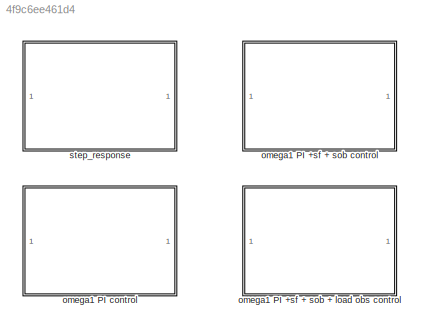
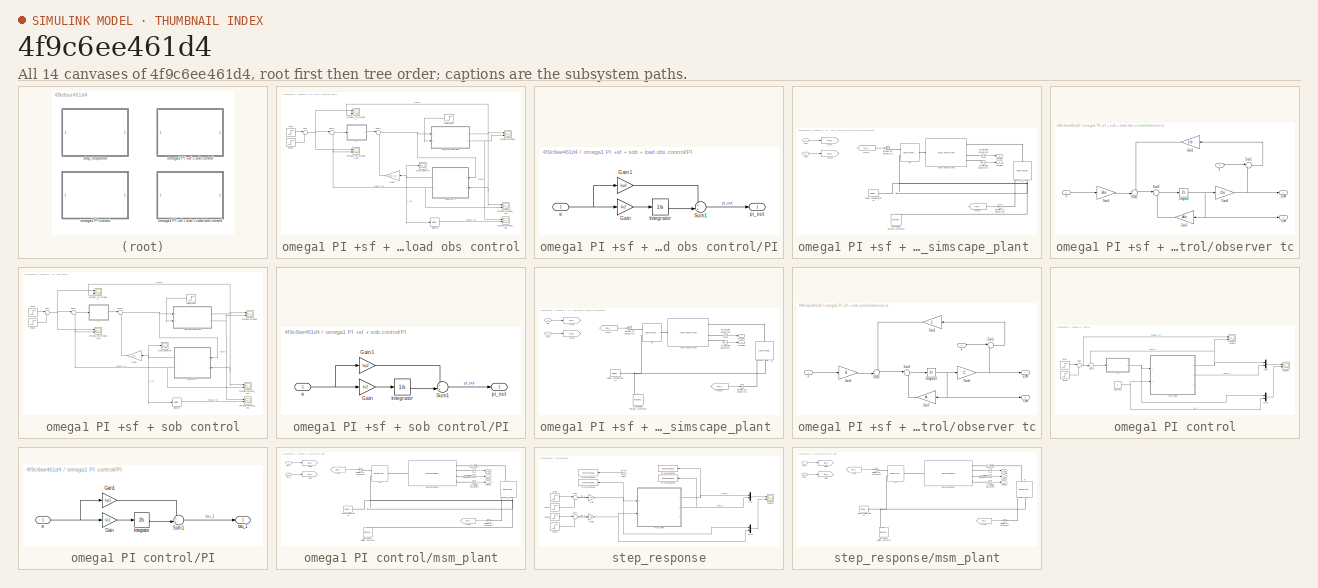
[diagram: thumbnail index - all 14 canvases of the model, root first then tree order]
MODEL slx_4f9c6ee461d4
KIND model
CONFIG AbsTol = auto
CONFIG EnableMultiTasking = off
CONFIG FixedStep = auto
CONFIG MaxStep = Tc
CONFIG MinStep = auto
CONFIG RelTol = 1e-3
CONFIG SampleTimeConstraint = Unconstrained
CONFIG SolverName = daessc
CONFIG StartTime = 0.0
CONFIG StopTime = simlength
BLOCK [SubSystem] omega1 PI +sf + sob + load obs control
  Commented = on
  Ports = []
  RequestExecContextInheritance = off
BLOCK [Gain] omega1 PI +sf + sob + load obs control/Gain3
  Gain = [Ks -1]
  Multiplication = Matrix(K*u)
BLOCK [Step] omega1 PI +sf + sob + load obs control/Load_step
  After = load_torque
  NameLocation = top
  SampleTime = 0
  Time = 16
BLOCK [SubSystem] omega1 PI +sf + sob + load obs control/PI
  Ports = [1, 1]
  RequestExecContextInheritance = off
BLOCK [Gain] omega1 PI +sf + sob + load obs control/PI/Gain
  Gain = ki2
BLOCK [Gain] omega1 PI +sf + sob + load obs control/PI/Gain1
  Gain = kp2
BLOCK [Integrator] omega1 PI +sf + sob + load obs control/PI/Integrator
  Ports = [1, 1]
BLOCK [Sum] omega1 PI +sf + sob + load obs control/PI/Sum1
  Inputs = ++|
  Ports = [2, 1]
BLOCK [Inport] omega1 PI +sf + sob + load obs control/PI/e
BLOCK [Outport] omega1 PI +sf + sob + load obs control/PI/pi_out
BLOCK [Selector] omega1 PI +sf + sob + load obs control/Selector
  IndexOptions = Index vector (dialog)
  Indices = 2
  InputPortWidth = 4
  OutputSizes = 1
  Ports = [1, 1]
BLOCK [Step] omega1 PI +sf + sob + load obs control/Step
  SampleTime = 0
  Time = 0.2
BLOCK [Step] omega1 PI +sf + sob + load obs control/Step1
  SampleTime = 0
  Time = 8
BLOCK [Sum] omega1 PI +sf + sob + load obs control/Sum
  Inputs = |+-
  Ports = [2, 1]
BLOCK [Sum] omega1 PI +sf + sob + load obs control/Sum3
  Inputs = |+-
  Ports = [2, 1]
BLOCK [Sum] omega1 PI +sf + sob + load obs control/Sum4
  Inputs = |+-
  Ports = [2, 1]
BLOCK [SubSystem] omega1 PI +sf + sob + load obs control/code_simscape_plant 
  Ports = [2, 2]
  RequestExecContextInheritance = off
BLOCK [From] omega1 PI +sf + sob + load obs control/code_simscape_plant /From1
  GotoTag = tau_1
BLOCK [From] omega1 PI +sf + sob + load obs control/code_simscape_plant /From2
  GotoTag = tau_2
BLOCK [Goto] omega1 PI +sf + sob + load obs control/code_simscape_plant /Goto
  GotoTag = tau_1
BLOCK [Goto] omega1 PI +sf + sob + load obs control/code_simscape_plant /Goto1
  GotoTag = tau_2
BLOCK [Reference] omega1 PI +sf + sob + load obs control/code_simscape_plant /Mechanical Rotational Reference1  REF=fl_lib/Mechanical/Rotational Elements/Mechanical
Rotational Reference
  NameLocation = right
  Ports = [0, 0, 0, 0, 0, 1]
  SourceBlock = fl_lib/Mechanical/Rotational Elements/Mechanical\nRotational Reference
  SourceProductBaseCode = SS
  SourceType = Mechanical\nRotational Reference
BLOCK [Reference] omega1 PI +sf + sob + load obs control/code_simscape_plant /PS-Simulink Converter2  REF=nesl_utility/PS-Simulink
Converter
  Ports = [0, 1, 0, 0, 0, 1]
  SourceBlock = nesl_utility/PS-Simulink\nConverter
  SourceProductBaseCode = PW,SS
  SourceType = PS-Simulink\nConverter
BLOCK [Reference] omega1 PI +sf + sob + load obs control/code_simscape_plant /PS-Simulink Converter3  REF=nesl_utility/PS-Simulink
Converter
  NameLocation = top
  Ports = [0, 1, 0, 0, 0, 1]
  SourceBlock = nesl_utility/PS-Simulink\nConverter
  SourceProductBaseCode = PW,SS
  SourceType = PS-Simulink\nConverter
BLOCK [Reference] omega1 PI +sf + sob + load obs control/code_simscape_plant /Simulink-PS Converter1  REF=nesl_utility/Simulink-PS
Converter
  Ports = [1, 0, 0, 0, 0, 0, 1]
  SourceBlock = nesl_utility/Simulink-PS\nConverter
  SourceProductBaseCode = PW,SS
  SourceType = Simulink-PS\nConverter
BLOCK [Reference] omega1 PI +sf + sob + load obs control/code_simscape_plant /Simulink-PS Converter2  REF=nesl_utility/Simulink-PS
Converter
  Ports = [1, 0, 0, 0, 0, 0, 1]
  SourceBlock = nesl_utility/Simulink-PS\nConverter
  SourceProductBaseCode = PW,SS
  SourceType = Simulink-PS\nConverter
BLOCK [Reference] omega1 PI +sf + sob + load obs control/code_simscape_plant /Solver Configuration1  REF=nesl_utility/Solver
Configuration
  Ports = [0, 0, 0, 0, 0, 0, 1]
  SourceBlock = nesl_utility/Solver\nConfiguration
  SourceProductBaseCode = PW,SS
  SourceType = Solver\nConfiguration
BLOCK [Reference] omega1 PI +sf + sob + load obs control/code_simscape_plant /TL  REF=fl_lib/Mechanical/Mechanical Sources/Ideal Torque Source
  NameLocation = right
  Ports = [0, 0, 0, 0, 0, 1, 2]
  SourceBlock = fl_lib/Mechanical/Mechanical Sources/Ideal Torque Source
  SourceProductBaseCode = SS
  SourceType = Ideal Torque Source
BLOCK [Reference] omega1 PI +sf + sob + load obs control/code_simscape_plant /Tm   REF=fl_lib/Mechanical/Mechanical Sources/Ideal Torque Source
  Ports = [0, 0, 0, 0, 0, 1, 2]
  SourceBlock = fl_lib/Mechanical/Mechanical Sources/Ideal Torque Source
  SourceProductBaseCode = SS
  SourceType = Ideal Torque Source
BLOCK [Reference] omega1 PI +sf + sob + load obs control/code_simscape_plant /mass spring mass  REF=mass_spring_mass_lib/mass spring mass
  Ports = [0, 0, 0, 0, 0, 1, 4]
  SourceBlock = mass_spring_mass_lib/mass spring mass
  SourceType = mass spring mass
BLOCK [Outport] omega1 PI +sf + sob + load obs control/code_simscape_plant /omega1
BLOCK [Outport] omega1 PI +sf + sob + load obs control/code_simscape_plant /omega2
  Port = 2
BLOCK [Inport] omega1 PI +sf + sob + load obs control/code_simscape_plant /tau1
BLOCK [Inport] omega1 PI +sf + sob + load obs control/code_simscape_plant /tau2
  Port = 2
BLOCK [SubSystem] omega1 PI +sf + sob + load obs control/observer tc
  NameLocation = top
  Ports = [2, 2]
  RequestExecContextInheritance = off
BLOCK [Gain] omega1 PI +sf + sob + load obs control/observer tc/Gain1
  Gain = Lle
  Multiplication = Matrix(K*u)
  NameLocation = top
BLOCK [Gain] omega1 PI +sf + sob + load obs control/observer tc/Gain5
  Gain = Ble
  Multiplication = Matrix(K*u)
BLOCK [Gain] omega1 PI +sf + sob + load obs control/observer tc/Gain6
  Gain = Cle
  Multiplication = Matrix(K*u)
BLOCK [Gain] omega1 PI +sf + sob + load obs control/observer tc/Gain7
  Gain = Ale
  Multiplication = Matrix(K*u)
BLOCK [Integrator] omega1 PI +sf + sob + load obs control/observer tc/Integrator
  Ports = [1, 1]
BLOCK [Sum] omega1 PI +sf + sob + load obs control/observer tc/Sum1
  Inputs = |+-
  Ports = [2, 1]
BLOCK [Sum] omega1 PI +sf + sob + load obs control/observer tc/Sum2
  Inputs = ++|
  Ports = [2, 1]
BLOCK [Sum] omega1 PI +sf + sob + load obs control/observer tc/Sum3
  Inputs = |++
  Ports = [2, 1]
BLOCK [Inport] omega1 PI +sf + sob + load obs control/observer tc/u
BLOCK [Outport] omega1 PI +sf + sob + load obs control/observer tc/x_hat
BLOCK [Inport] omega1 PI +sf + sob + load obs control/observer tc/y
  Port = 2
BLOCK [Outport] omega1 PI +sf + sob + load obs control/observer tc/y_hat
  Port = 2
BLOCK [Scope] omega1 PI +sf + sob + load obs control/omega1//omega1_hat
  Floating = off
  NumInputPorts = 2
  Ports = [2]
  ScopeSpecificationString = Simulink.scopes.TimeScopeBlockCfg('CurrentConfiguration', extmgr.ConfigurationSet(extmgr.Configuration('Core','General UI',true),extmgr.Configuration('Core','Source UI',true),extmgr.Configuration('Sources','WiredSimulink',true,'DataLoggingVariableName','ScopeData1'),extmgr.Configuration('Visuals','Time Domain',true,'SerializedDisplays',{struct('MinYLimReal','-1.06166','MaxYLimReal','4.25568','YLab...<+1646ch>
BLOCK [Scope] omega1 PI +sf + sob + load obs control/omega1//omega2
  Floating = off
  NumInputPorts = 2
  Ports = [2]
  ScopeSpecificationString = Simulink.scopes.TimeScopeBlockCfg('CurrentConfiguration', extmgr.ConfigurationSet(extmgr.Configuration('Core','General UI',true),extmgr.Configuration('Core','Source UI',true),extmgr.Configuration('Sources','WiredSimulink',true,'DataLoggingVariableName','ScopeData2'),extmgr.Configuration('Visuals','Time Domain',true,'SerializedDisplays',{struct('MinYLimReal','-0.43288','MaxYLimReal','1.77513','YLab...<+1671ch>
BLOCK [Scope] omega1 PI +sf + sob + load obs control/omega1_ref//omega1
  Floating = off
  NumInputPorts = 2
  Ports = [2]
  ScopeSpecificationString = Simulink.scopes.TimeScopeBlockCfg('CurrentConfiguration', extmgr.ConfigurationSet(extmgr.Configuration('Core','General UI',true),extmgr.Configuration('Core','Source UI',true),extmgr.Configuration('Sources','WiredSimulink',true,'DataLoggingVariableName','ScopeData3'),extmgr.Configuration('Visuals','Time Domain',true,'SerializedDisplays',{struct('MinYLimReal','-1.06022','MaxYLimReal','4.24278','YLab...<+1654ch>
BLOCK [Scope] omega1 PI +sf + sob + load obs control/omega1_ref//omega1_hat
  Floating = off
  NumInputPorts = 2
  Ports = [2]
  ScopeSpecificationString = Simulink.scopes.TimeScopeBlockCfg('CurrentConfiguration', extmgr.ConfigurationSet(extmgr.Configuration('Core','General UI',true),extmgr.Configuration('Core','Source UI',true),extmgr.Configuration('Sources','WiredSimulink',true,'DataLoggingVariableName','ScopeData4'),extmgr.Configuration('Visuals','Time Domain',true,'SerializedDisplays',{struct('MinYLimReal','-1.06022','MaxYLimReal','4.24278','YLab...<+1672ch>
BLOCK [Scope] omega1 PI +sf + sob + load obs control/omega2//omega2_hat
  Floating = off
  NumInputPorts = 2
  Ports = [2]
  ScopeSpecificationString = Simulink.scopes.TimeScopeBlockCfg('CurrentConfiguration', extmgr.ConfigurationSet(extmgr.Configuration('Core','General UI',true),extmgr.Configuration('Core','Source UI',true),extmgr.Configuration('Sources','WiredSimulink',true,'DataLoggingVariableName','ScopeData5'),extmgr.Configuration('Visuals','Time Domain',true,'SerializedDisplays',{struct('MinYLimReal','-1.2654','MaxYLimReal','6.39','YLabelRe...<+1636ch>
BLOCK [Scope] omega1 PI +sf + sob + load obs control/state_observer
  Floating = off
  NumInputPorts = 1
  Ports = [1]
  ScopeSpecificationString = Simulink.scopes.TimeScopeBlockCfg('CurrentConfiguration', extmgr.ConfigurationSet(extmgr.Configuration('Core','General UI',true),extmgr.Configuration('Core','Source UI',true),extmgr.Configuration('Sources','WiredSimulink',true,'DataLoggingVariableName','ScopeData6'),extmgr.Configuration('Visuals','Time Domain',true,'SerializedDisplays',{struct('MinYLimReal','-0.29359','MaxYLimReal','1.29359','YLab...<+1460ch>
BLOCK [SubSystem] omega1 PI +sf + sob control
  Commented = on
  Ports = []
  RequestExecContextInheritance = off
BLOCK [Gain] omega1 PI +sf + sob control/Gain3
  Gain = Ks
  Multiplication = Matrix(K*u)
BLOCK [Step] omega1 PI +sf + sob control/Load_step
  After = load_torque
  NameLocation = top
  SampleTime = 0
  Time = 16
BLOCK [SubSystem] omega1 PI +sf + sob control/PI
  Ports = [1, 1]
  RequestExecContextInheritance = off
BLOCK [Gain] omega1 PI +sf + sob control/PI/Gain
  Gain = ki2
BLOCK [Gain] omega1 PI +sf + sob control/PI/Gain1
  Gain = kp2
BLOCK [Integrator] omega1 PI +sf + sob control/PI/Integrator
  Ports = [1, 1]
BLOCK [Sum] omega1 PI +sf + sob control/PI/Sum1
  Inputs = ++|
  Ports = [2, 1]
BLOCK [Inport] omega1 PI +sf + sob control/PI/e
BLOCK [Outport] omega1 PI +sf + sob control/PI/pi_out
BLOCK [Selector] omega1 PI +sf + sob control/Selector
  IndexOptions = Index vector (dialog)
  Indices = 2
  InputPortWidth = 3
  OutputSizes = 1
  Ports = [1, 1]
BLOCK [Step] omega1 PI +sf + sob control/Step
  SampleTime = 0
  Time = 0.2
BLOCK [Step] omega1 PI +sf + sob control/Step1
  SampleTime = 0
  Time = 8
BLOCK [Sum] omega1 PI +sf + sob control/Sum
  Inputs = |+-
  Ports = [2, 1]
BLOCK [Sum] omega1 PI +sf + sob control/Sum3
  Inputs = |+-
  Ports = [2, 1]
BLOCK [Sum] omega1 PI +sf + sob control/Sum4
  Inputs = |+-
  Ports = [2, 1]
BLOCK [SubSystem] omega1 PI +sf + sob control/code_simscape_plant 
  Ports = [2, 2]
  RequestExecContextInheritance = off
BLOCK [From] omega1 PI +sf + sob control/code_simscape_plant /From1
  GotoTag = tau_1
BLOCK [From] omega1 PI +sf + sob control/code_simscape_plant /From2
  GotoTag = tau_2
BLOCK [Goto] omega1 PI +sf + sob control/code_simscape_plant /Goto
  GotoTag = tau_1
BLOCK [Goto] omega1 PI +sf + sob control/code_simscape_plant /Goto1
  GotoTag = tau_2
BLOCK [Reference] omega1 PI +sf + sob control/code_simscape_plant /Mechanical Rotational Reference1  REF=fl_lib/Mechanical/Rotational Elements/Mechanical
Rotational Reference
  NameLocation = right
  Ports = [0, 0, 0, 0, 0, 1]
  SourceBlock = fl_lib/Mechanical/Rotational Elements/Mechanical\nRotational Reference
  SourceProductBaseCode = SS
  SourceType = Mechanical\nRotational Reference
BLOCK [Reference] omega1 PI +sf + sob control/code_simscape_plant /PS-Simulink Converter2  REF=nesl_utility/PS-Simulink
Converter
  Ports = [0, 1, 0, 0, 0, 1]
  SourceBlock = nesl_utility/PS-Simulink\nConverter
  SourceProductBaseCode = PW,SS
  SourceType = PS-Simulink\nConverter
BLOCK [Reference] omega1 PI +sf + sob control/code_simscape_plant /PS-Simulink Converter3  REF=nesl_utility/PS-Simulink
Converter
  NameLocation = top
  Ports = [0, 1, 0, 0, 0, 1]
  SourceBlock = nesl_utility/PS-Simulink\nConverter
  SourceProductBaseCode = PW,SS
  SourceType = PS-Simulink\nConverter
BLOCK [Reference] omega1 PI +sf + sob control/code_simscape_plant /Simulink-PS Converter1  REF=nesl_utility/Simulink-PS
Converter
  Ports = [1, 0, 0, 0, 0, 0, 1]
  SourceBlock = nesl_utility/Simulink-PS\nConverter
  SourceProductBaseCode = PW,SS
  SourceType = Simulink-PS\nConverter
BLOCK [Reference] omega1 PI +sf + sob control/code_simscape_plant /Simulink-PS Converter2  REF=nesl_utility/Simulink-PS
Converter
  Ports = [1, 0, 0, 0, 0, 0, 1]
  SourceBlock = nesl_utility/Simulink-PS\nConverter
  SourceProductBaseCode = PW,SS
  SourceType = Simulink-PS\nConverter
BLOCK [Reference] omega1 PI +sf + sob control/code_simscape_plant /Solver Configuration1  REF=nesl_utility/Solver
Configuration
  Ports = [0, 0, 0, 0, 0, 0, 1]
  SourceBlock = nesl_utility/Solver\nConfiguration
  SourceProductBaseCode = PW,SS
  SourceType = Solver\nConfiguration
BLOCK [Reference] omega1 PI +sf + sob control/code_simscape_plant /TL  REF=fl_lib/Mechanical/Mechanical Sources/Ideal Torque Source
  NameLocation = right
  Ports = [0, 0, 0, 0, 0, 1, 2]
  SourceBlock = fl_lib/Mechanical/Mechanical Sources/Ideal Torque Source
  SourceProductBaseCode = SS
  SourceType = Ideal Torque Source
BLOCK [Reference] omega1 PI +sf + sob control/code_simscape_plant /Tm   REF=fl_lib/Mechanical/Mechanical Sources/Ideal Torque Source
  Ports = [0, 0, 0, 0, 0, 1, 2]
  SourceBlock = fl_lib/Mechanical/Mechanical Sources/Ideal Torque Source
  SourceProductBaseCode = SS
  SourceType = Ideal Torque Source
BLOCK [Reference] omega1 PI +sf + sob control/code_simscape_plant /mass spring mass  REF=mass_spring_mass_lib/mass spring mass
  Ports = [0, 0, 0, 0, 0, 1, 4]
  SourceBlock = mass_spring_mass_lib/mass spring mass
  SourceType = mass spring mass
BLOCK [Outport] omega1 PI +sf + sob control/code_simscape_plant /omega1
BLOCK [Outport] omega1 PI +sf + sob control/code_simscape_plant /omega2
  Port = 2
BLOCK [Inport] omega1 PI +sf + sob control/code_simscape_plant /tau1
BLOCK [Inport] omega1 PI +sf + sob control/code_simscape_plant /tau2
  Port = 2
BLOCK [SubSystem] omega1 PI +sf + sob control/observer tc
  NameLocation = top
  Ports = [2, 2]
  RequestExecContextInheritance = off
BLOCK [Gain] omega1 PI +sf + sob control/observer tc/Gain1
  Gain = L
  Multiplication = Matrix(K*u)
  NameLocation = top
BLOCK [Gain] omega1 PI +sf + sob control/observer tc/Gain5
  Gain = B
  Multiplication = Matrix(K*u)
BLOCK [Gain] omega1 PI +sf + sob control/observer tc/Gain6
  Gain = C
  Multiplication = Matrix(K*u)
BLOCK [Gain] omega1 PI +sf + sob control/observer tc/Gain7
  Gain = A
  Multiplication = Matrix(K*u)
BLOCK [Integrator] omega1 PI +sf + sob control/observer tc/Integrator2
  Ports = [1, 1]
BLOCK [Sum] omega1 PI +sf + sob control/observer tc/Sum1
  Inputs = |+-
  Ports = [2, 1]
BLOCK [Sum] omega1 PI +sf + sob control/observer tc/Sum2
  Inputs = ++|
  Ports = [2, 1]
BLOCK [Sum] omega1 PI +sf + sob control/observer tc/Sum3
  Inputs = |++
  Ports = [2, 1]
BLOCK [Inport] omega1 PI +sf + sob control/observer tc/u
BLOCK [Outport] omega1 PI +sf + sob control/observer tc/x_hat
BLOCK [Inport] omega1 PI +sf + sob control/observer tc/y
  Port = 2
BLOCK [Outport] omega1 PI +sf + sob control/observer tc/y_hat
  Port = 2
BLOCK [Scope] omega1 PI +sf + sob control/omega1//omega1_hat
  Floating = off
  NumInputPorts = 2
  Ports = [2]
  ScopeSpecificationString = Simulink.scopes.TimeScopeBlockCfg('CurrentConfiguration', extmgr.ConfigurationSet(extmgr.Configuration('Core','General UI',true),extmgr.Configuration('Core','Source UI',true),extmgr.Configuration('Sources','WiredSimulink',true,'DataLoggingVariableName','ScopeData1'),extmgr.Configuration('Visuals','Time Domain',true,'SerializedDisplays',{struct('MinYLimReal','-1.06166','MaxYLimReal','4.25568','YLab...<+1646ch>
BLOCK [Scope] omega1 PI +sf + sob control/omega1//omega2
  Floating = off
  NumInputPorts = 2
  Ports = [2]
  ScopeSpecificationString = Simulink.scopes.TimeScopeBlockCfg('CurrentConfiguration', extmgr.ConfigurationSet(extmgr.Configuration('Core','General UI',true),extmgr.Configuration('Core','Source UI',true),extmgr.Configuration('Sources','WiredSimulink',true,'DataLoggingVariableName','ScopeData2'),extmgr.Configuration('Visuals','Time Domain',true,'SerializedDisplays',{struct('MinYLimReal','-0.43288','MaxYLimReal','1.77513','YLab...<+1676ch>
BLOCK [Scope] omega1 PI +sf + sob control/omega1_ref//omega1
  Floating = off
  NumInputPorts = 2
  Ports = [2]
  ScopeSpecificationString = Simulink.scopes.TimeScopeBlockCfg('CurrentConfiguration', extmgr.ConfigurationSet(extmgr.Configuration('Core','General UI',true),extmgr.Configuration('Core','Source UI',true),extmgr.Configuration('Sources','WiredSimulink',true,'DataLoggingVariableName','ScopeData3'),extmgr.Configuration('Visuals','Time Domain',true,'SerializedDisplays',{struct('MinYLimReal','-1.06022','MaxYLimReal','4.24278','YLab...<+1654ch>
BLOCK [Scope] omega1 PI +sf + sob control/omega1_ref//omega1_hat
  Floating = off
  NumInputPorts = 2
  Ports = [2]
  ScopeSpecificationString = Simulink.scopes.TimeScopeBlockCfg('CurrentConfiguration', extmgr.ConfigurationSet(extmgr.Configuration('Core','General UI',true),extmgr.Configuration('Core','Source UI',true),extmgr.Configuration('Sources','WiredSimulink',true,'DataLoggingVariableName','ScopeData4'),extmgr.Configuration('Visuals','Time Domain',true,'SerializedDisplays',{struct('MinYLimReal','-1.06022','MaxYLimReal','4.24278','YLab...<+1672ch>
BLOCK [Scope] omega1 PI +sf + sob control/omega2//omega2_hat
  Floating = off
  NumInputPorts = 2
  Ports = [2]
  ScopeSpecificationString = Simulink.scopes.TimeScopeBlockCfg('CurrentConfiguration', extmgr.ConfigurationSet(extmgr.Configuration('Core','General UI',true),extmgr.Configuration('Core','Source UI',true),extmgr.Configuration('Sources','WiredSimulink',true,'DataLoggingVariableName','ScopeData5'),extmgr.Configuration('Visuals','Time Domain',true,'SerializedDisplays',{struct('MinYLimReal','-1.2654','MaxYLimReal','6.39','YLabelRe...<+1662ch>
BLOCK [Scope] omega1 PI +sf + sob control/state_observer
  Floating = off
  NumInputPorts = 1
  Ports = [1]
  ScopeSpecificationString = Simulink.scopes.TimeScopeBlockCfg('CurrentConfiguration', extmgr.ConfigurationSet(extmgr.Configuration('Core','General UI',true),extmgr.Configuration('Core','Source UI',true),extmgr.Configuration('Sources','WiredSimulink',true,'DataLoggingVariableName','ScopeData6'),extmgr.Configuration('Visuals','Time Domain',true,'SerializedDisplays',{struct('MinYLimReal','-0.54663','MaxYLimReal','2.03668','YLab...<+1460ch>
BLOCK [SubSystem] omega1 PI control
  Commented = on
  Ports = []
  RequestExecContextInheritance = off
BLOCK [Constant] omega1 PI control/Constant
  Value = 0
BLOCK [Mux] omega1 PI control/Mux
  DisplayOption = bar
  Inputs = 2
  Ports = [2, 1]
BLOCK [Mux] omega1 PI control/Mux1
  DisplayOption = bar
  Inputs = 2
  Ports = [2, 1]
BLOCK [SubSystem] omega1 PI control/PI
  Ports = [1, 1]
  RequestExecContextInheritance = off
BLOCK [Gain] omega1 PI control/PI/Gain
  Gain = ki1
BLOCK [Gain] omega1 PI control/PI/Gain1
  Gain = kp1
BLOCK [Integrator] omega1 PI control/PI/Integrator
  Ports = [1, 1]
BLOCK [Sum] omega1 PI control/PI/Sum1
  Inputs = ++|
  Ports = [2, 1]
BLOCK [Inport] omega1 PI control/PI/e
BLOCK [Outport] omega1 PI control/PI/tau_1
BLOCK [Scope] omega1 PI control/Scope1
  Floating = off
  NumInputPorts = 2
  Ports = [2]
  ScopeSpecificationString = Simulink.scopes.TimeScopeBlockCfg('CurrentConfiguration', extmgr.ConfigurationSet(extmgr.Configuration('Core','General UI',true),extmgr.Configuration('Core','Source UI',true),extmgr.Configuration('Sources','WiredSimulink',true,'DataLoggingVariableName','ScopeData1','SampleTime','Tc'),extmgr.Configuration('Visuals','Time Domain',true,'SerializedDisplays',{struct('MinYLimReal','-4.9334','MaxYLimReal...<+1742ch>
BLOCK [Scope] omega1 PI control/Scope3
  Floating = off
  NumInputPorts = 2
  Ports = [2]
  ScopeSpecificationString = Simulink.scopes.TimeScopeBlockCfg('CurrentConfiguration', extmgr.ConfigurationSet(extmgr.Configuration('Core','General UI',true),extmgr.Configuration('Core','Source UI',true),extmgr.Configuration('Sources','WiredSimulink',true,'DataLoggingVariableName','ScopeData1','SampleTime','Tc'),extmgr.Configuration('Visuals','Time Domain',true,'SerializedDisplays',{struct('MinYLimReal','-1.72502','MaxYLimRea...<+2406ch>
BLOCK [Step] omega1 PI control/Step
  SampleTime = 0
  Time = 0.2
BLOCK [Step] omega1 PI control/Step1
  SampleTime = 0
  Time = simlength/2
BLOCK [Sum] omega1 PI control/Sum
  Inputs = |+-
  Ports = [2, 1]
BLOCK [Sum] omega1 PI control/Sum2
  Inputs = -+|
  Ports = [2, 1]
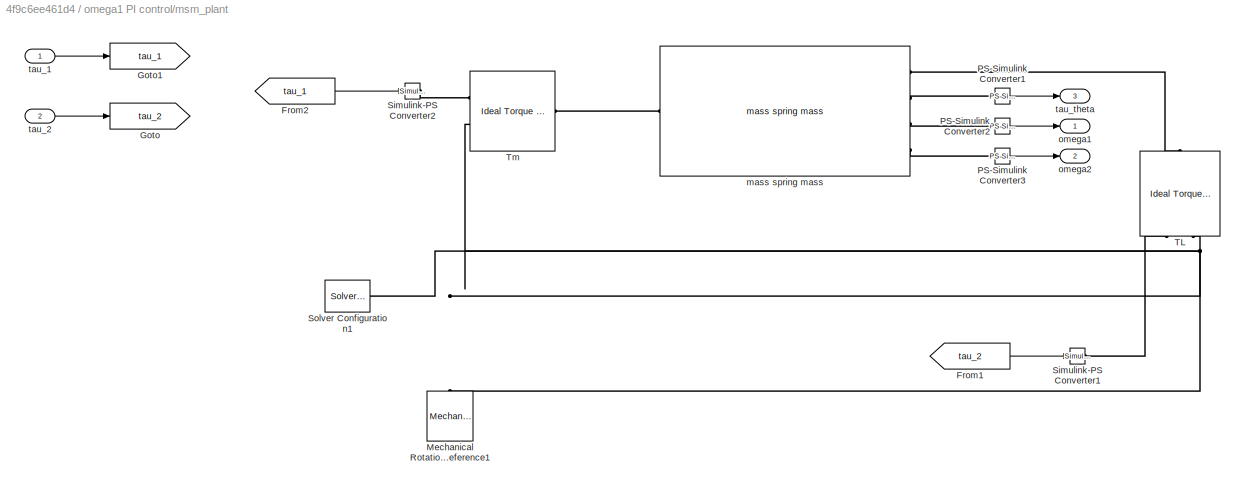
BLOCK [SubSystem] omega1 PI control/msm_plant
  Ports = [2, 3]
  RequestExecContextInheritance = off
BLOCK [From] omega1 PI control/msm_plant/From1
  GotoTag = tau_2
BLOCK [From] omega1 PI control/msm_plant/From2
  GotoTag = tau_1
BLOCK [Goto] omega1 PI control/msm_plant/Goto
  GotoTag = tau_2
BLOCK [Goto] omega1 PI control/msm_plant/Goto1
  GotoTag = tau_1
BLOCK [Reference] omega1 PI control/msm_plant/Mechanical Rotational Reference1  REF=fl_lib/Mechanical/Rotational Elements/Mechanical
Rotational Reference
  NameLocation = right
  Ports = [0, 0, 0, 0, 0, 1]
  SourceBlock = fl_lib/Mechanical/Rotational Elements/Mechanical\nRotational Reference
  SourceProductBaseCode = SS
  SourceType = Mechanical\nRotational Reference
BLOCK [Reference] omega1 PI control/msm_plant/PS-Simulink Converter1  REF=nesl_utility/PS-Simulink
Converter
  Ports = [0, 1, 0, 0, 0, 1]
  SourceBlock = nesl_utility/PS-Simulink\nConverter
  SourceProductBaseCode = PW,SS
  SourceType = PS-Simulink\nConverter
BLOCK [Reference] omega1 PI control/msm_plant/PS-Simulink Converter2  REF=nesl_utility/PS-Simulink
Converter
  Ports = [0, 1, 0, 0, 0, 1]
  SourceBlock = nesl_utility/PS-Simulink\nConverter
  SourceProductBaseCode = PW,SS
  SourceType = PS-Simulink\nConverter
BLOCK [Reference] omega1 PI control/msm_plant/PS-Simulink Converter3  REF=nesl_utility/PS-Simulink
Converter
  NameLocation = top
  Ports = [0, 1, 0, 0, 0, 1]
  SourceBlock = nesl_utility/PS-Simulink\nConverter
  SourceProductBaseCode = PW,SS
  SourceType = PS-Simulink\nConverter
BLOCK [Reference] omega1 PI control/msm_plant/Simulink-PS Converter1  REF=nesl_utility/Simulink-PS
Converter
  Ports = [1, 0, 0, 0, 0, 0, 1]
  SourceBlock = nesl_utility/Simulink-PS\nConverter
  SourceProductBaseCode = PW,SS
  SourceType = Simulink-PS\nConverter
BLOCK [Reference] omega1 PI control/msm_plant/Simulink-PS Converter2  REF=nesl_utility/Simulink-PS
Converter
  Ports = [1, 0, 0, 0, 0, 0, 1]
  SourceBlock = nesl_utility/Simulink-PS\nConverter
  SourceProductBaseCode = PW,SS
  SourceType = Simulink-PS\nConverter
BLOCK [Reference] omega1 PI control/msm_plant/Solver Configuration1  REF=nesl_utility/Solver
Configuration
  Ports = [0, 0, 0, 0, 0, 0, 1]
  SourceBlock = nesl_utility/Solver\nConfiguration
  SourceProductBaseCode = PW,SS
  SourceType = Solver\nConfiguration
BLOCK [Reference] omega1 PI control/msm_plant/TL  REF=fl_lib/Mechanical/Mechanical Sources/Ideal Torque Source
  NameLocation = right
  Ports = [0, 0, 0, 0, 0, 1, 2]
  SourceBlock = fl_lib/Mechanical/Mechanical Sources/Ideal Torque Source
  SourceProductBaseCode = SS
  SourceType = Ideal Torque Source
BLOCK [Reference] omega1 PI control/msm_plant/Tm   REF=fl_lib/Mechanical/Mechanical Sources/Ideal Torque Source
  Ports = [0, 0, 0, 0, 0, 1, 2]
  SourceBlock = fl_lib/Mechanical/Mechanical Sources/Ideal Torque Source
  SourceProductBaseCode = SS
  SourceType = Ideal Torque Source
BLOCK [Reference] omega1 PI control/msm_plant/mass spring mass  REF=mass_spring_mass_lib/mass spring mass
  Ports = [0, 0, 0, 0, 0, 1, 4]
  SourceBlock = mass_spring_mass_lib/mass spring mass
  SourceType = mass spring mass
BLOCK [Outport] omega1 PI control/msm_plant/omega1
BLOCK [Outport] omega1 PI control/msm_plant/omega2
  Port = 2
BLOCK [Inport] omega1 PI control/msm_plant/tau_1
BLOCK [Inport] omega1 PI control/msm_plant/tau_2
  Port = 2
BLOCK [Outport] omega1 PI control/msm_plant/tau_theta
  Port = 3
BLOCK [SubSystem] step_response
  Ports = []
  RequestExecContextInheritance = off
BLOCK [Clock] step_response/Clock
  NameLocation = top
BLOCK [Gain] step_response/Gain
  Gain = 10
BLOCK [Gain] step_response/Gain1
  Gain = 10
BLOCK [Mux] step_response/Mux
  DisplayOption = bar
  Inputs = 2
  Ports = [2, 1]
BLOCK [Mux] step_response/Mux1
  DisplayOption = bar
  Inputs = 2
  Ports = [2, 1]
BLOCK [Scope] step_response/Scope3
  Floating = off
  NumInputPorts = 2
  Ports = [2]
  ScopeSpecificationString = Simulink.scopes.TimeScopeBlockCfg('CurrentConfiguration', extmgr.ConfigurationSet(extmgr.Configuration('Core','General UI',true),extmgr.Configuration('Core','Source UI',true),extmgr.Configuration('Sources','WiredSimulink',true,'DataLoggingVariableName','ScopeData1','SampleTime','Tc'),extmgr.Configuration('Visuals','Time Domain',true,'SerializedDisplays',{struct('MinYLimReal','-0.21245','MaxYLimRea...<+2430ch>
BLOCK [Step] step_response/Step
  SampleTime = 0
  Time = 0.2
BLOCK [Step] step_response/Step1
  SampleTime = 0
  Time = 0.25
BLOCK [Step] step_response/Step2
  SampleTime = 0
  Time = 0.2+simlength/2
BLOCK [Step] step_response/Step3
  SampleTime = 0
  Time = 0.25+simlength/2
BLOCK [Sum] step_response/Sum
  Inputs = |+-
  Ports = [2, 1]
BLOCK [Sum] step_response/Sum1
  Inputs = |+-
  Ports = [2, 1]
BLOCK [ToWorkspace] step_response/To Workspace1
  FixptAsFi = on
  MaxDataPoints = Nc
  NameLocation = top
  Ports = [1]
  SampleTime = Tc
  VariableName = w1
BLOCK [ToWorkspace] step_response/To Workspace2
  FixptAsFi = on
  MaxDataPoints = Nc
  NameLocation = top
  Ports = [1]
  SampleTime = Tc
  VariableName = w2
BLOCK [ToWorkspace] step_response/To Workspace6
  FixptAsFi = on
  MaxDataPoints = Nc
  NameLocation = top
  Ports = [1]
  SampleTime = Tc
  VariableName = tau_1
BLOCK [ToWorkspace] step_response/To Workspace7
  FixptAsFi = on
  MaxDataPoints = Nc
  NameLocation = top
  Ports = [1]
  SampleTime = Tc
  VariableName = t
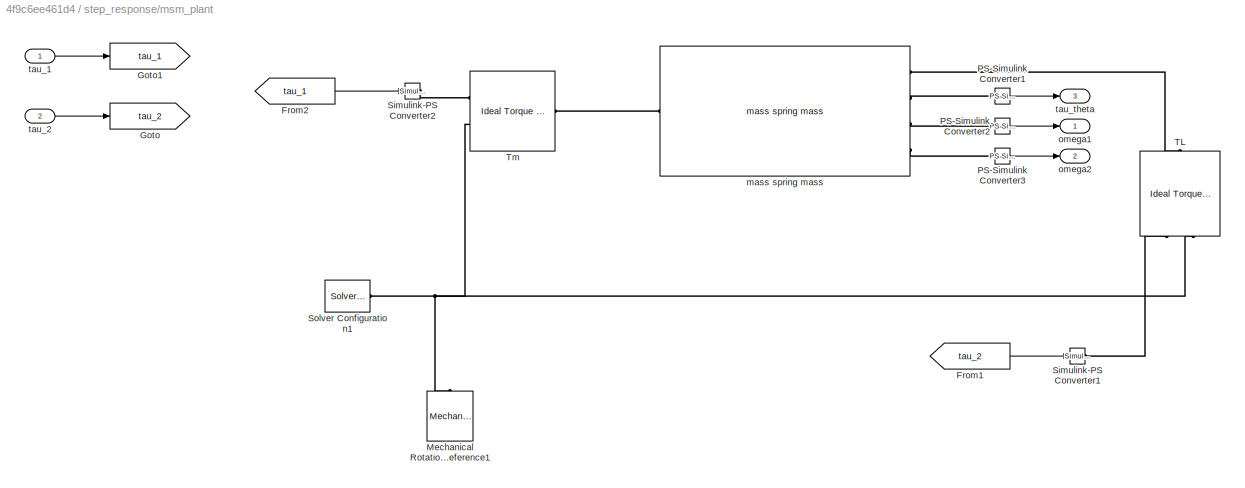
BLOCK [SubSystem] step_response/msm_plant
  Ports = [2, 3]
  RequestExecContextInheritance = off
BLOCK [From] step_response/msm_plant/From1
  GotoTag = tau_2
BLOCK [From] step_response/msm_plant/From2
  GotoTag = tau_1
BLOCK [Goto] step_response/msm_plant/Goto
  GotoTag = tau_2
BLOCK [Goto] step_response/msm_plant/Goto1
  GotoTag = tau_1
BLOCK [Reference] step_response/msm_plant/Mechanical Rotational Reference1  REF=fl_lib/Mechanical/Rotational Elements/Mechanical
Rotational Reference
  NameLocation = right
  Ports = [0, 0, 0, 0, 0, 1]
  SourceBlock = fl_lib/Mechanical/Rotational Elements/Mechanical\nRotational Reference
  SourceProductBaseCode = SS
  SourceType = Mechanical\nRotational Reference
BLOCK [Reference] step_response/msm_plant/PS-Simulink Converter1  REF=nesl_utility/PS-Simulink
Converter
  Ports = [0, 1, 0, 0, 0, 1]
  SourceBlock = nesl_utility/PS-Simulink\nConverter
  SourceProductBaseCode = PW,SS
  SourceType = PS-Simulink\nConverter
BLOCK [Reference] step_response/msm_plant/PS-Simulink Converter2  REF=nesl_utility/PS-Simulink
Converter
  Ports = [0, 1, 0, 0, 0, 1]
  SourceBlock = nesl_utility/PS-Simulink\nConverter
  SourceProductBaseCode = PW,SS
  SourceType = PS-Simulink\nConverter
BLOCK [Reference] step_response/msm_plant/PS-Simulink Converter3  REF=nesl_utility/PS-Simulink
Converter
  NameLocation = top
  Ports = [0, 1, 0, 0, 0, 1]
  SourceBlock = nesl_utility/PS-Simulink\nConverter
  SourceProductBaseCode = PW,SS
  SourceType = PS-Simulink\nConverter
BLOCK [Reference] step_response/msm_plant/Simulink-PS Converter1  REF=nesl_utility/Simulink-PS
Converter
  Ports = [1, 0, 0, 0, 0, 0, 1]
  SourceBlock = nesl_utility/Simulink-PS\nConverter
  SourceProductBaseCode = PW,SS
  SourceType = Simulink-PS\nConverter
BLOCK [Reference] step_response/msm_plant/Simulink-PS Converter2  REF=nesl_utility/Simulink-PS
Converter
  Ports = [1, 0, 0, 0, 0, 0, 1]
  SourceBlock = nesl_utility/Simulink-PS\nConverter
  SourceProductBaseCode = PW,SS
  SourceType = Simulink-PS\nConverter
BLOCK [Reference] step_response/msm_plant/Solver Configuration1  REF=nesl_utility/Solver
Configuration
  Ports = [0, 0, 0, 0, 0, 0, 1]
  SourceBlock = nesl_utility/Solver\nConfiguration
  SourceProductBaseCode = PW,SS
  SourceType = Solver\nConfiguration
BLOCK [Reference] step_response/msm_plant/TL  REF=fl_lib/Mechanical/Mechanical Sources/Ideal Torque Source
  NameLocation = right
  Ports = [0, 0, 0, 0, 0, 1, 2]
  SourceBlock = fl_lib/Mechanical/Mechanical Sources/Ideal Torque Source
  SourceProductBaseCode = SS
  SourceType = Ideal Torque Source
BLOCK [Reference] step_response/msm_plant/Tm   REF=fl_lib/Mechanical/Mechanical Sources/Ideal Torque Source
  Ports = [0, 0, 0, 0, 0, 1, 2]
  SourceBlock = fl_lib/Mechanical/Mechanical Sources/Ideal Torque Source
  SourceProductBaseCode = SS
  SourceType = Ideal Torque Source
BLOCK [Reference] step_response/msm_plant/mass spring mass  REF=mass_spring_mass_lib/mass spring mass
  Ports = [0, 0, 0, 0, 0, 1, 4]
  SourceBlock = mass_spring_mass_lib/mass spring mass
  SourceType = mass spring mass
BLOCK [Outport] step_response/msm_plant/omega1
BLOCK [Outport] step_response/msm_plant/omega2
  Port = 2
BLOCK [Inport] step_response/msm_plant/tau_1
BLOCK [Inport] step_response/msm_plant/tau_2
  Port = 2
BLOCK [Outport] step_response/msm_plant/tau_theta
  Port = 3
LINE omega1 PI +sf + sob + load obs control/Gain3:1 -> omega1 PI +sf + sob + load obs control/Sum3:2
LINE omega1 PI +sf + sob + load obs control/Load_step:1 -> omega1 PI +sf + sob + load obs control/code_simscape_plant :2
LINE omega1 PI +sf + sob + load obs control/PI/Gain1:1 -> omega1 PI +sf + sob + load obs control/PI/Sum1:1
LINE omega1 PI +sf + sob + load obs control/PI/Gain:1 -> omega1 PI +sf + sob + load obs control/PI/Integrator:1
LINE omega1 PI +sf + sob + load obs control/PI/Integrator:1 -> omega1 PI +sf + sob + load obs control/PI/Sum1:2
LINE omega1 PI +sf + sob + load obs control/PI/Sum1:1 -> omega1 PI +sf + sob + load obs control/PI/pi_out:1
NET omega1 PI +sf + sob + load obs control/PI/e:1 -> omega1 PI +sf + sob + load obs control/PI/Gain1:1, omega1 PI +sf + sob + load obs control/PI/Gain:1
LINE omega1 PI +sf + sob + load obs control/PI:1 -> omega1 PI +sf + sob + load obs control/Sum3:1
LINE omega1 PI +sf + sob + load obs control/Selector:1 -> omega1 PI +sf + sob + load obs control/omega2//omega2_hat:2
LINE omega1 PI +sf + sob + load obs control/Step1:1 -> omega1 PI +sf + sob + load obs control/Sum:2
LINE omega1 PI +sf + sob + load obs control/Step:1 -> omega1 PI +sf + sob + load obs control/Sum:1
NET omega1 PI +sf + sob + load obs control/Sum3:1 -> omega1 PI +sf + sob + load obs control/code_simscape_plant :1, omega1 PI +sf + sob + load obs control/observer tc:1
LINE omega1 PI +sf + sob + load obs control/Sum4:1 -> omega1 PI +sf + sob + load obs control/PI:1
NET omega1 PI +sf + sob + load obs control/Sum:1 -> omega1 PI +sf + sob + load obs control/Sum4:1, omega1 PI +sf + sob + load obs control/omega1_ref//omega1:1, omega1 PI +sf + sob + load obs control/omega1_ref//omega1_hat:1
LINE omega1 PI +sf + sob + load obs control/code_simscape_plant /From1:1 -> omega1 PI +sf + sob + load obs control/code_simscape_plant /Simulink-PS Converter2:1
LINE omega1 PI +sf + sob + load obs control/code_simscape_plant /From2:1 -> omega1 PI +sf + sob + load obs control/code_simscape_plant /Simulink-PS Converter1:1
LINE omega1 PI +sf + sob + load obs control/code_simscape_plant /PS-Simulink Converter2:1 -> omega1 PI +sf + sob + load obs control/code_simscape_plant /omega1:1
LINE omega1 PI +sf + sob + load obs control/code_simscape_plant /PS-Simulink Converter3:1 -> omega1 PI +sf + sob + load obs control/code_simscape_plant /omega2:1
LINE omega1 PI +sf + sob + load obs control/code_simscape_plant /tau1:1 -> omega1 PI +sf + sob + load obs control/code_simscape_plant /Goto:1
LINE omega1 PI +sf + sob + load obs control/code_simscape_plant /tau2:1 -> omega1 PI +sf + sob + load obs control/code_simscape_plant /Goto1:1
NET omega1 PI +sf + sob + load obs control/code_simscape_plant :1 -> omega1 PI +sf + sob + load obs control/observer tc:2, omega1 PI +sf + sob + load obs control/omega1//omega1_hat:1, omega1 PI +sf + sob + load obs control/omega1//omega2:1, omega1 PI +sf + sob + load obs control/omega1_ref//omega1:2
NET omega1 PI +sf + sob + load obs control/code_simscape_plant :2 -> omega1 PI +sf + sob + load obs control/omega1//omega2:2, omega1 PI +sf + sob + load obs control/omega2//omega2_hat:1
LINE omega1 PI +sf + sob + load obs control/observer tc/Gain1:1 -> omega1 PI +sf + sob + load obs control/observer tc/Sum2:1
LINE omega1 PI +sf + sob + load obs control/observer tc/Gain5:1 -> omega1 PI +sf + sob + load obs control/observer tc/Sum2:2
NET omega1 PI +sf + sob + load obs control/observer tc/Gain6:1 -> omega1 PI +sf + sob + load obs control/observer tc/Sum1:2, omega1 PI +sf + sob + load obs control/observer tc/y_hat:1
LINE omega1 PI +sf + sob + load obs control/observer tc/Gain7:1 -> omega1 PI +sf + sob + load obs control/observer tc/Sum3:2
NET omega1 PI +sf + sob + load obs control/observer tc/Integrator:1 -> omega1 PI +sf + sob + load obs control/observer tc/Gain6:1, omega1 PI +sf + sob + load obs control/observer tc/Gain7:1, omega1 PI +sf + sob + load obs control/observer tc/x_hat:1
LINE omega1 PI +sf + sob + load obs control/observer tc/Sum1:1 -> omega1 PI +sf + sob + load obs control/observer tc/Gain1:1
LINE omega1 PI +sf + sob + load obs control/observer tc/Sum2:1 -> omega1 PI +sf + sob + load obs control/observer tc/Sum3:1
LINE omega1 PI +sf + sob + load obs control/observer tc/Sum3:1 -> omega1 PI +sf + sob + load obs control/observer tc/Integrator:1
LINE omega1 PI +sf + sob + load obs control/observer tc/u:1 -> omega1 PI +sf + sob + load obs control/observer tc/Gain5:1
LINE omega1 PI +sf + sob + load obs control/observer tc/y:1 -> omega1 PI +sf + sob + load obs control/observer tc/Sum1:1
NET omega1 PI +sf + sob + load obs control/observer tc:1 -> omega1 PI +sf + sob + load obs control/Gain3:1, omega1 PI +sf + sob + load obs control/Selector:1, omega1 PI +sf + sob + load obs control/state_observer:1
NET omega1 PI +sf + sob + load obs control/observer tc:2 -> omega1 PI +sf + sob + load obs control/Sum4:2, omega1 PI +sf + sob + load obs control/omega1//omega1_hat:2, omega1 PI +sf + sob + load obs control/omega1_ref//omega1_hat:2
LINE omega1 PI +sf + sob control/Gain3:1 -> omega1 PI +sf + sob control/Sum3:2
LINE omega1 PI +sf + sob control/Load_step:1 -> omega1 PI +sf + sob control/code_simscape_plant :2
LINE omega1 PI +sf + sob control/PI/Gain1:1 -> omega1 PI +sf + sob control/PI/Sum1:1
LINE omega1 PI +sf + sob control/PI/Gain:1 -> omega1 PI +sf + sob control/PI/Integrator:1
LINE omega1 PI +sf + sob control/PI/Integrator:1 -> omega1 PI +sf + sob control/PI/Sum1:2
LINE omega1 PI +sf + sob control/PI/Sum1:1 -> omega1 PI +sf + sob control/PI/pi_out:1
NET omega1 PI +sf + sob control/PI/e:1 -> omega1 PI +sf + sob control/PI/Gain1:1, omega1 PI +sf + sob control/PI/Gain:1
LINE omega1 PI +sf + sob control/PI:1 -> omega1 PI +sf + sob control/Sum3:1
LINE omega1 PI +sf + sob control/Selector:1 -> omega1 PI +sf + sob control/omega2//omega2_hat:2
LINE omega1 PI +sf + sob control/Step1:1 -> omega1 PI +sf + sob control/Sum:2
LINE omega1 PI +sf + sob control/Step:1 -> omega1 PI +sf + sob control/Sum:1
NET omega1 PI +sf + sob control/Sum3:1 -> omega1 PI +sf + sob control/code_simscape_plant :1, omega1 PI +sf + sob control/observer tc:1
LINE omega1 PI +sf + sob control/Sum4:1 -> omega1 PI +sf + sob control/PI:1
NET omega1 PI +sf + sob control/Sum:1 -> omega1 PI +sf + sob control/Sum4:1, omega1 PI +sf + sob control/omega1_ref//omega1:1, omega1 PI +sf + sob control/omega1_ref//omega1_hat:1
LINE omega1 PI +sf + sob control/code_simscape_plant /From1:1 -> omega1 PI +sf + sob control/code_simscape_plant /Simulink-PS Converter2:1
LINE omega1 PI +sf + sob control/code_simscape_plant /From2:1 -> omega1 PI +sf + sob control/code_simscape_plant /Simulink-PS Converter1:1
LINE omega1 PI +sf + sob control/code_simscape_plant /PS-Simulink Converter2:1 -> omega1 PI +sf + sob control/code_simscape_plant /omega1:1
LINE omega1 PI +sf + sob control/code_simscape_plant /PS-Simulink Converter3:1 -> omega1 PI +sf + sob control/code_simscape_plant /omega2:1
LINE omega1 PI +sf + sob control/code_simscape_plant /tau1:1 -> omega1 PI +sf + sob control/code_simscape_plant /Goto:1
LINE omega1 PI +sf + sob control/code_simscape_plant /tau2:1 -> omega1 PI +sf + sob control/code_simscape_plant /Goto1:1
NET omega1 PI +sf + sob control/code_simscape_plant :1 -> omega1 PI +sf + sob control/observer tc:2, omega1 PI +sf + sob control/omega1//omega1_hat:1, omega1 PI +sf + sob control/omega1//omega2:1, omega1 PI +sf + sob control/omega1_ref//omega1:2
NET omega1 PI +sf + sob control/code_simscape_plant :2 -> omega1 PI +sf + sob control/omega1//omega2:2, omega1 PI +sf + sob control/omega2//omega2_hat:1
LINE omega1 PI +sf + sob control/observer tc/Gain1:1 -> omega1 PI +sf + sob control/observer tc/Sum2:1
LINE omega1 PI +sf + sob control/observer tc/Gain5:1 -> omega1 PI +sf + sob control/observer tc/Sum2:2
NET omega1 PI +sf + sob control/observer tc/Gain6:1 -> omega1 PI +sf + sob control/observer tc/Sum1:2, omega1 PI +sf + sob control/observer tc/y_hat:1
LINE omega1 PI +sf + sob control/observer tc/Gain7:1 -> omega1 PI +sf + sob control/observer tc/Sum3:2
NET omega1 PI +sf + sob control/observer tc/Integrator2:1 -> omega1 PI +sf + sob control/observer tc/Gain6:1, omega1 PI +sf + sob control/observer tc/Gain7:1, omega1 PI +sf + sob control/observer tc/x_hat:1
LINE omega1 PI +sf + sob control/observer tc/Sum1:1 -> omega1 PI +sf + sob control/observer tc/Gain1:1
LINE omega1 PI +sf + sob control/observer tc/Sum2:1 -> omega1 PI +sf + sob control/observer tc/Sum3:1
LINE omega1 PI +sf + sob control/observer tc/Sum3:1 -> omega1 PI +sf + sob control/observer tc/Integrator2:1
LINE omega1 PI +sf + sob control/observer tc/u:1 -> omega1 PI +sf + sob control/observer tc/Gain5:1
LINE omega1 PI +sf + sob control/observer tc/y:1 -> omega1 PI +sf + sob control/observer tc/Sum1:1
NET omega1 PI +sf + sob control/observer tc:1 -> omega1 PI +sf + sob control/Gain3:1, omega1 PI +sf + sob control/Selector:1, omega1 PI +sf + sob control/state_observer:1
NET omega1 PI +sf + sob control/observer tc:2 -> omega1 PI +sf + sob control/Sum4:2, omega1 PI +sf + sob control/omega1//omega1_hat:2, omega1 PI +sf + sob control/omega1_ref//omega1_hat:2
NET omega1 PI control/Constant:1 -> omega1 PI control/Mux1:2, omega1 PI control/msm_plant:2
LINE omega1 PI control/Mux1:1 -> omega1 PI control/Scope3:2
LINE omega1 PI control/Mux:1 -> omega1 PI control/Scope3:1
LINE omega1 PI control/PI/Gain1:1 -> omega1 PI control/PI/Sum1:1
LINE omega1 PI control/PI/Gain:1 -> omega1 PI control/PI/Integrator:1
LINE omega1 PI control/PI/Integrator:1 -> omega1 PI control/PI/Sum1:2
LINE omega1 PI control/PI/Sum1:1 -> omega1 PI control/PI/tau_1:1
NET omega1 PI control/PI/e:1 -> omega1 PI control/PI/Gain1:1, omega1 PI control/PI/Gain:1
NET omega1 PI control/PI:1 -> omega1 PI control/Mux1:1, omega1 PI control/msm_plant:1
LINE omega1 PI control/Step1:1 -> omega1 PI control/Sum:2
LINE omega1 PI control/Step:1 -> omega1 PI control/Sum:1
LINE omega1 PI control/Sum2:1 -> omega1 PI control/PI:1
NET omega1 PI control/Sum:1 -> omega1 PI control/Scope1:1, omega1 PI control/Sum2:2
LINE omega1 PI control/msm_plant/From1:1 -> omega1 PI control/msm_plant/Simulink-PS Converter1:1
LINE omega1 PI control/msm_plant/From2:1 -> omega1 PI control/msm_plant/Simulink-PS Converter2:1
LINE omega1 PI control/msm_plant/PS-Simulink Converter1:1 -> omega1 PI control/msm_plant/tau_theta:1
LINE omega1 PI control/msm_plant/PS-Simulink Converter2:1 -> omega1 PI control/msm_plant/omega1:1
LINE omega1 PI control/msm_plant/PS-Simulink Converter3:1 -> omega1 PI control/msm_plant/omega2:1
LINE omega1 PI control/msm_plant/tau_1:1 -> omega1 PI control/msm_plant/Goto1:1
LINE omega1 PI control/msm_plant/tau_2:1 -> omega1 PI control/msm_plant/Goto:1
NET omega1 PI control/msm_plant:1 -> omega1 PI control/Mux:1, omega1 PI control/Scope1:2, omega1 PI control/Sum2:1
LINE omega1 PI control/msm_plant:2 -> omega1 PI control/Mux:2
LINE step_response/Clock:1 -> step_response/To Workspace7:1
NET step_response/Gain1:1 -> step_response/Mux1:2, step_response/msm_plant:2
NET step_response/Gain:1 -> step_response/Mux1:1, step_response/To Workspace6:1, step_response/msm_plant:1
LINE step_response/Mux1:1 -> step_response/Scope3:2
LINE step_response/Mux:1 -> step_response/Scope3:1
LINE step_response/Step1:1 -> step_response/Sum:2
LINE step_response/Step2:1 -> step_response/Sum1:1
LINE step_response/Step3:1 -> step_response/Sum1:2
LINE step_response/Step:1 -> step_response/Sum:1
LINE step_response/Sum1:1 -> step_response/Gain1:1
LINE step_response/Sum:1 -> step_response/Gain:1
LINE step_response/msm_plant/From1:1 -> step_response/msm_plant/Simulink-PS Converter1:1
LINE step_response/msm_plant/From2:1 -> step_response/msm_plant/Simulink-PS Converter2:1
LINE step_response/msm_plant/PS-Simulink Converter1:1 -> step_response/msm_plant/tau_theta:1
LINE step_response/msm_plant/PS-Simulink Converter2:1 -> step_response/msm_plant/omega1:1
LINE step_response/msm_plant/PS-Simulink Converter3:1 -> step_response/msm_plant/omega2:1
LINE step_response/msm_plant/tau_1:1 -> step_response/msm_plant/Goto1:1
LINE step_response/msm_plant/tau_2:1 -> step_response/msm_plant/Goto:1
NET step_response/msm_plant:1 -> step_response/Mux:1, step_response/To Workspace1:1
NET step_response/msm_plant:2 -> step_response/Mux:2, step_response/To Workspace2:1
PNET net1: omega1 PI +sf + sob + load obs control/code_simscape_plant /Mechanical Rotational Reference1:LConn1 -- omega1 PI +sf + sob + load obs control/code_simscape_plant /Solver Configuration1:RConn1 -- omega1 PI +sf + sob + load obs control/code_simscape_plant /TL:RConn2 -- omega1 PI +sf + sob + load obs control/code_simscape_plant /Tm :RConn2
PLINE omega1 PI +sf + sob + load obs control/code_simscape_plant /PS-Simulink Converter2:LConn1 -- omega1 PI +sf + sob + load obs control/code_simscape_plant /mass spring mass:RConn3
PLINE omega1 PI +sf + sob + load obs control/code_simscape_plant /PS-Simulink Converter3:LConn1 -- omega1 PI +sf + sob + load obs control/code_simscape_plant /mass spring mass:RConn4
PLINE omega1 PI +sf + sob + load obs control/code_simscape_plant /Simulink-PS Converter1:RConn1 -- omega1 PI +sf + sob + load obs control/code_simscape_plant /TL:RConn1
PLINE omega1 PI +sf + sob + load obs control/code_simscape_plant /Simulink-PS Converter2:RConn1 -- omega1 PI +sf + sob + load obs control/code_simscape_plant /Tm :RConn1
PLINE omega1 PI +sf + sob + load obs control/code_simscape_plant /TL:LConn1 -- omega1 PI +sf + sob + load obs control/code_simscape_plant /mass spring mass:RConn1
PLINE omega1 PI +sf + sob + load obs control/code_simscape_plant /Tm :LConn1 -- omega1 PI +sf + sob + load obs control/code_simscape_plant /mass spring mass:LConn1
PNET net2: omega1 PI +sf + sob control/code_simscape_plant /Mechanical Rotational Reference1:LConn1 -- omega1 PI +sf + sob control/code_simscape_plant /Solver Configuration1:RConn1 -- omega1 PI +sf + sob control/code_simscape_plant /TL:RConn2 -- omega1 PI +sf + sob control/code_simscape_plant /Tm :RConn2
PLINE omega1 PI +sf + sob control/code_simscape_plant /PS-Simulink Converter2:LConn1 -- omega1 PI +sf + sob control/code_simscape_plant /mass spring mass:RConn3
PLINE omega1 PI +sf + sob control/code_simscape_plant /PS-Simulink Converter3:LConn1 -- omega1 PI +sf + sob control/code_simscape_plant /mass spring mass:RConn4
PLINE omega1 PI +sf + sob control/code_simscape_plant /Simulink-PS Converter1:RConn1 -- omega1 PI +sf + sob control/code_simscape_plant /TL:RConn1
PLINE omega1 PI +sf + sob control/code_simscape_plant /Simulink-PS Converter2:RConn1 -- omega1 PI +sf + sob control/code_simscape_plant /Tm :RConn1
PLINE omega1 PI +sf + sob control/code_simscape_plant /TL:LConn1 -- omega1 PI +sf + sob control/code_simscape_plant /mass spring mass:RConn1
PLINE omega1 PI +sf + sob control/code_simscape_plant /Tm :LConn1 -- omega1 PI +sf + sob control/code_simscape_plant /mass spring mass:LConn1
PNET net3: omega1 PI control/msm_plant/Mechanical Rotational Reference1:LConn1 -- omega1 PI control/msm_plant/Solver Configuration1:RConn1 -- omega1 PI control/msm_plant/TL:RConn2 -- omega1 PI control/msm_plant/Tm :RConn2
PLINE omega1 PI control/msm_plant/PS-Simulink Converter1:LConn1 -- omega1 PI control/msm_plant/mass spring mass:RConn2
PLINE omega1 PI control/msm_plant/PS-Simulink Converter2:LConn1 -- omega1 PI control/msm_plant/mass spring mass:RConn3
PLINE omega1 PI control/msm_plant/PS-Simulink Converter3:LConn1 -- omega1 PI control/msm_plant/mass spring mass:RConn4
PLINE omega1 PI control/msm_plant/Simulink-PS Converter1:RConn1 -- omega1 PI control/msm_plant/TL:RConn1
PLINE omega1 PI control/msm_plant/Simulink-PS Converter2:RConn1 -- omega1 PI control/msm_plant/Tm :RConn1
PLINE omega1 PI control/msm_plant/TL:LConn1 -- omega1 PI control/msm_plant/mass spring mass:RConn1
PLINE omega1 PI control/msm_plant/Tm :LConn1 -- omega1 PI control/msm_plant/mass spring mass:LConn1
PNET net4: step_response/msm_plant/Mechanical Rotational Reference1:LConn1 -- step_response/msm_plant/Solver Configuration1:RConn1 -- step_response/msm_plant/TL:RConn2 -- step_response/msm_plant/Tm :RConn2
PLINE step_response/msm_plant/PS-Simulink Converter1:LConn1 -- step_response/msm_plant/mass spring mass:RConn2
PLINE step_response/msm_plant/PS-Simulink Converter2:LConn1 -- step_response/msm_plant/mass spring mass:RConn3
PLINE step_response/msm_plant/PS-Simulink Converter3:LConn1 -- step_response/msm_plant/mass spring mass:RConn4
PLINE step_response/msm_plant/Simulink-PS Converter1:RConn1 -- step_response/msm_plant/TL:RConn1
PLINE step_response/msm_plant/Simulink-PS Converter2:RConn1 -- step_response/msm_plant/Tm :RConn1
PLINE step_response/msm_plant/TL:LConn1 -- step_response/msm_plant/mass spring mass:RConn1
PLINE step_response/msm_plant/Tm :LConn1 -- step_response/msm_plant/mass spring mass:LConn1
note: NET lines group one-source signal fan-out (src -> all destinations, sorted); 1:1 wires keep LINE; PNET lines group multi-terminal physical nets as a canonical sorted terminal list (undirected conserving connections); 2-terminal nets keep the pairwise PLINE form
